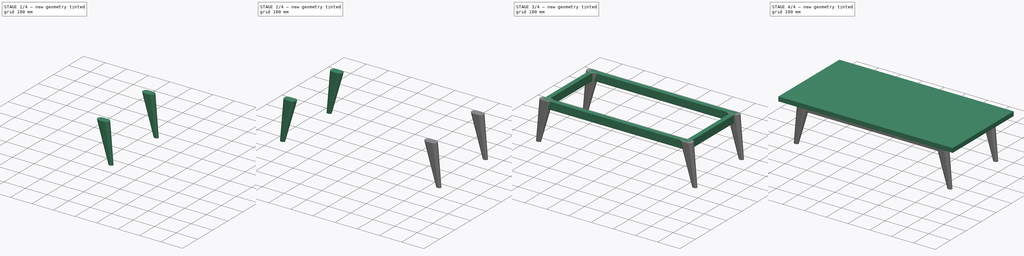
[diagram: build sequence overview — one tinted view per stage of 4, left to right]
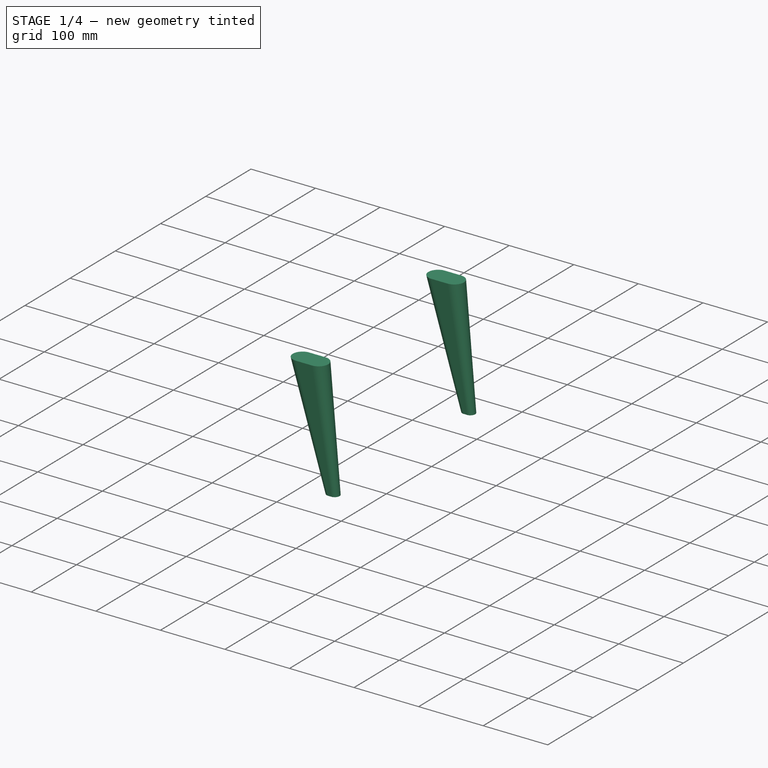
[diagram: stage 1 of 4 — iso view after this stage's code; geometry added in this stage tinted green]
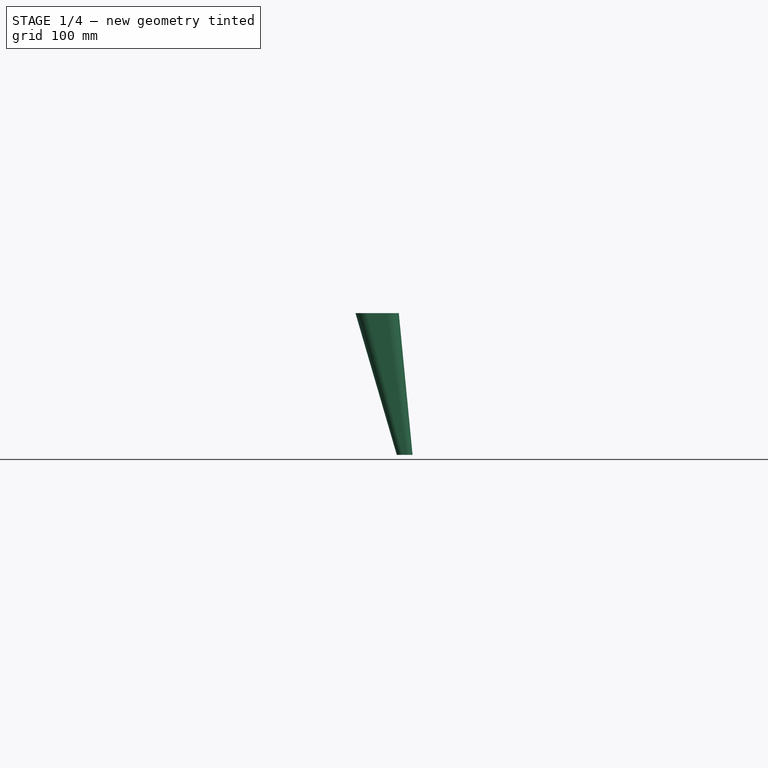
[diagram: stage 1 of 4 — front view after this stage's code; geometry added in this stage tinted green]
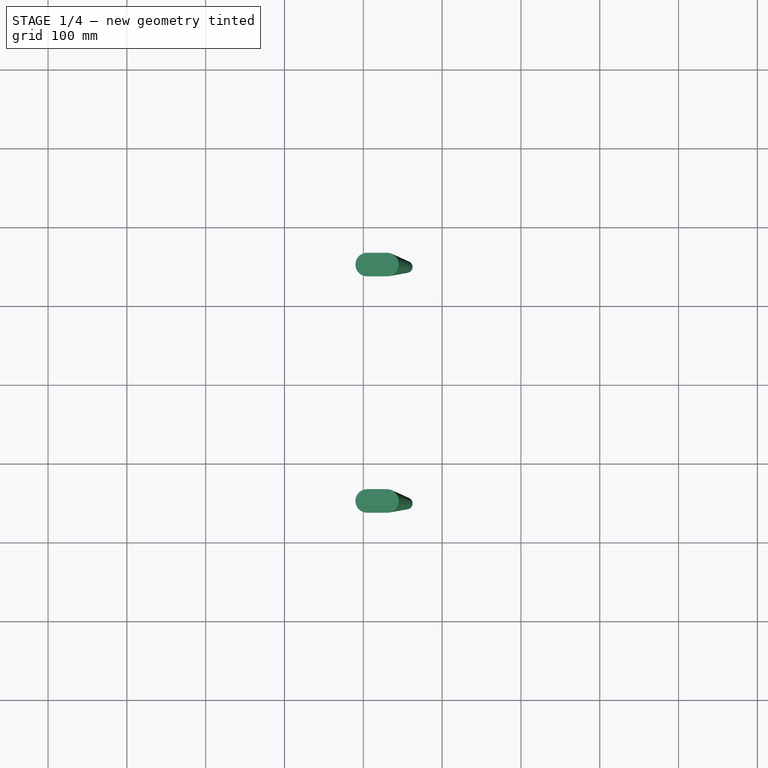
[diagram: stage 1 of 4 — top view after this stage's code; geometry added in this stage tinted green]
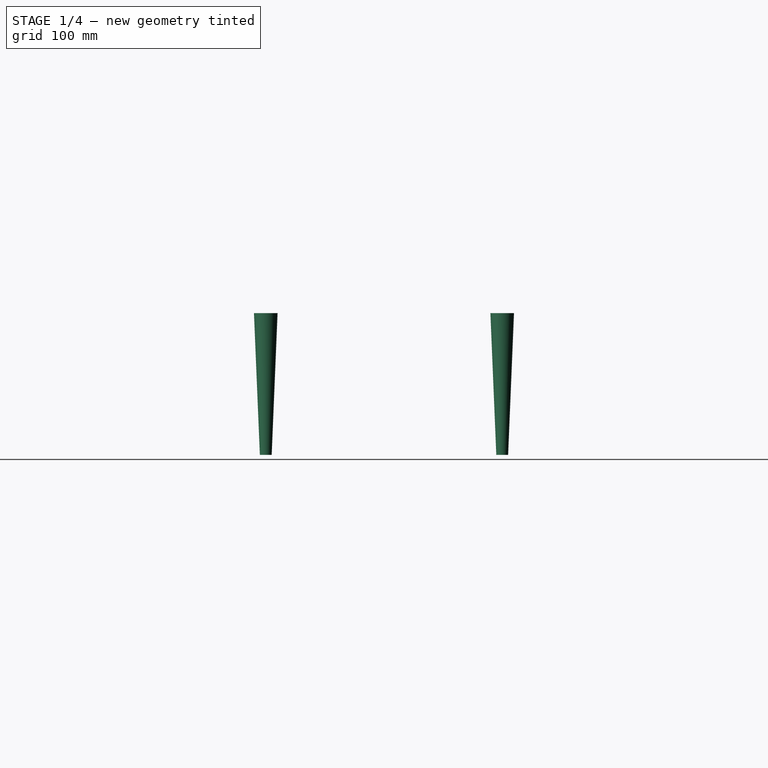
[diagram: stage 1 of 4 — right view after this stage's code; geometry added in this stage tinted green]
FCSTD DOCUMENT  (FreeCAD 1.0R38641 +468 (Git))
Label: Rectangular_center_table_R04
License: All rights reserved
LicenseURL: https://en.wikipedia.org/wiki/All_rights_reserved
objects: Sketcher::SketchObject×12, App::DocumentObjectGroup×11, App::MaterialObjectPython×5, App::FeaturePython×5, Part::Loft×4, Part::Extrusion×3, App::TextDocument×2, Part::Compound×2, Part::Part2DObjectPython×2, Spreadsheet::Sheet×1, App::VarSet×1, App::DocumentObjectGroupPython×1
note: 40 computed .brp shape members not serialized (recipe doc carries the construction recipe); baked Part::Feature solids carry a one-line shape summary decoded from their .brp

FEATURE [Sketcher::SketchObject] Sketch262
  ArcFitTolerance = 0
  AttachmentSupport = -> [Sketch022]
  ExternalGeometry = -> [Sketch022]
  FullyConstrained = true
  MakeInternals = false
  MapMode = 2
  sketch-geometry (4):
    g0: ArcOfCircle CenterX=350 CenterY=-150 CenterZ=0 NormalX=0 NormalY=0 NormalZ=1 AngleXU=0 Radius=7.5 StartAngle=1.5708 EndAngle=4.71239
    g1: ArcOfCircle CenterX=355 CenterY=-150 CenterZ=0 NormalX=0 NormalY=0 NormalZ=1 AngleXU=0 Radius=7.5 StartAngle=4.71239 EndAngle=7.85398
    g2: LineSegment StartX=350 StartY=-157.5 StartZ=0 EndX=355 EndY=-157.5 EndZ=0
    g3: LineSegment StartX=355 StartY=-142.5 StartZ=0 EndX=350 EndY=-142.5 EndZ=0
  constraints (10):
    c: Tangent(g0,g2) = -1.5708
    c: Tangent(g2,g1) = -1.5708
    c: Tangent(g1,g3) = -1.5708
    c: Tangent(g3,g0) = -1.5708
    c: Equal(g0,g1)
    c: Horizontal(g3)
    c: DistanceY(g1,g1) = 15  'Thickness'
    c: DistanceX(g0,g1) = 5  'Distance_between_arcs'
    c: DistanceY(g-3,g0) = 50
    c: DistanceX(g1,g-4) = 45  'Side_retreat'
FEATURE [Sketcher::SketchObject] Sketch263
  ArcFitTolerance = 0
  AttachmentOffset = pos=(0,0,180) rot=(0,0,1;0rad)
  AttachmentSupport = -> [Sketch022]
  ExternalGeometry = -> [Sketch022]
  FullyConstrained = true
  MakeInternals = false
  MapMode = 2
  Placement = pos=(0,0,180) rot=(0,0,1;0rad)
  expr: .AttachmentOffset.Base.z = VarSet.Base_dimensions_B_Height - VarSet.Panel_B_Thickness
  sketch-geometry (4):
    g0: ArcOfCircle CenterX=305 CenterY=-150 CenterZ=0 NormalX=0 NormalY=0 NormalZ=1 AngleXU=0 Radius=15 StartAngle=1.5708 EndAngle=4.71239
    g1: ArcOfCircle CenterX=330 CenterY=-150 CenterZ=0 NormalX=0 NormalY=0 NormalZ=1 AngleXU=0 Radius=15 StartAngle=4.71239 EndAngle=7.85398
    g2: LineSegment StartX=305 StartY=-165 StartZ=0 EndX=330 EndY=-165 EndZ=0
    g3: LineSegment StartX=330 StartY=-135 StartZ=0 EndX=305 EndY=-135 EndZ=0
  constraints (10):
    c: Tangent(g0,g2) = -1.5708
    c: Tangent(g2,g1) = -1.5708
    c: Tangent(g1,g3) = -1.5708
    c: Tangent(g3,g0) = -1.5708
    c: Equal(g0,g1)
    c: Horizontal(g2)
    c: DistanceY(g-3,g0) = 50  'Front_retreat'
    c: DistanceX(g3,g3) = 25  'Distance_between_arcs'
    c: DistanceY(g1,g1) = 30  'Thickness'
    c: DistanceX(g1,g-4) = 70  'Side_retreat'
FEATURE [Part::Loft] Loft002  label="Foot_03_"
  Closed = false
  MaxDegree = 5
  Ruled = true
  Sections = -> [Sketch262,Sketch263]
  Solid = true
FEATURE [Sketcher::SketchObject] Sketch264
  ArcFitTolerance = 0
  AttachmentSupport = -> [Sketch022]
  ExternalGeometry = -> [Sketch022]
  FullyConstrained = true
  MakeInternals = false
  MapMode = 2
  sketch-geometry (4):
    g0: ArcOfCircle CenterX=350 CenterY=150 CenterZ=0 NormalX=0 NormalY=0 NormalZ=1 AngleXU=0 Radius=7.5 StartAngle=1.5708 EndAngle=4.71239
    g1: ArcOfCircle CenterX=355 CenterY=150 CenterZ=0 NormalX=0 NormalY=0 NormalZ=1 AngleXU=0 Radius=7.5 StartAngle=4.71239 EndAngle=7.85398
    g2: LineSegment StartX=350 StartY=142.5 StartZ=0 EndX=355 EndY=142.5 EndZ=0
    g3: LineSegment StartX=355 StartY=157.5 StartZ=0 EndX=350 EndY=157.5 EndZ=0
  constraints (10):
    c: Tangent(g0,g2) = -1.5708
    c: Tangent(g2,g1) = -1.5708
    c: Tangent(g1,g3) = -1.5708
    c: Tangent(g3,g0) = -1.5708
    c: Equal(g0,g1)
    c: Horizontal(g3)
    c: DistanceY(g1,g1) = 15  'Thickness'
    c: DistanceX(g0,g1) = 5  'Distance_between_arcs'
    c: DistanceX(g1,g-4) = 45  'Side_retreat'
    c: DistanceY(g1,g-4) = 50  'Reat_retreat'
FEATURE [Sketcher::SketchObject] Sketch265
  ArcFitTolerance = 0
  AttachmentOffset = pos=(0,0,180) rot=(0,0,1;0rad)
  AttachmentSupport = -> [Sketch022]
  ExternalGeometry = -> [Sketch022]
  FullyConstrained = true
  MakeInternals = false
  MapMode = 2
  Placement = pos=(0,0,180) rot=(0,0,1;0rad)
  expr: .AttachmentOffset.Base.z = VarSet.Base_dimensions_B_Height - VarSet.Panel_B_Thickness
  sketch-geometry (4):
    g0: ArcOfCircle CenterX=305 CenterY=150 CenterZ=0 NormalX=0 NormalY=0 NormalZ=1 AngleXU=0 Radius=15 StartAngle=1.5708 EndAngle=4.71239
    g1: ArcOfCircle CenterX=330 CenterY=150 CenterZ=0 NormalX=0 NormalY=0 NormalZ=1 AngleXU=0 Radius=15 StartAngle=4.71239 EndAngle=7.85398
    g2: LineSegment StartX=305 StartY=135 StartZ=0 EndX=330 EndY=135 EndZ=0
    g3: LineSegment StartX=330 StartY=165 StartZ=0 EndX=305 EndY=165 EndZ=0
  constraints (10):
    c: Tangent(g0,g2) = -1.5708
    c: Tangent(g2,g1) = -1.5708
    c: Tangent(g1,g3) = -1.5708
    c: Tangent(g3,g0) = -1.5708
    c: Equal(g0,g1)
    c: Horizontal(g2)
    c: DistanceX(g3,g3) = 25  'Distance_between_arcs'
    c: DistanceY(g1,g1) = 30  'Thickness'
    c: DistanceX(g1,g-4) = 70  'Side_retreat'
    c: DistanceY(g1,g-4) = 50  'Rear_retreat'
FEATURE [Part::Loft] Loft003  label="Foot_03_001"
  Closed = false
  MaxDegree = 5
  Ruled = true
  Sections = -> [Sketch264,Sketch265]
  Solid = true
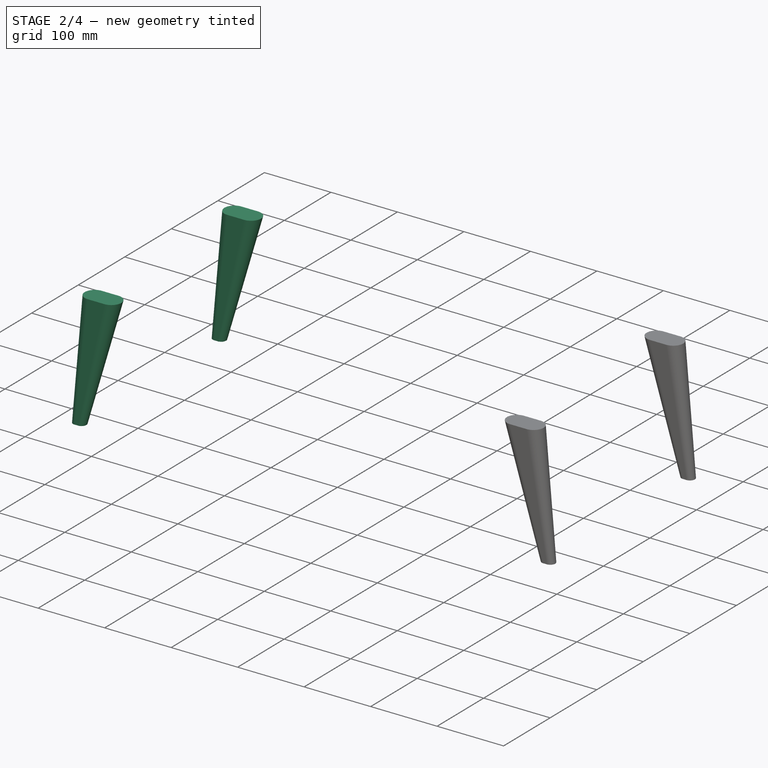
[diagram: stage 2 of 4 — iso view after this stage's code; geometry added in this stage tinted green]
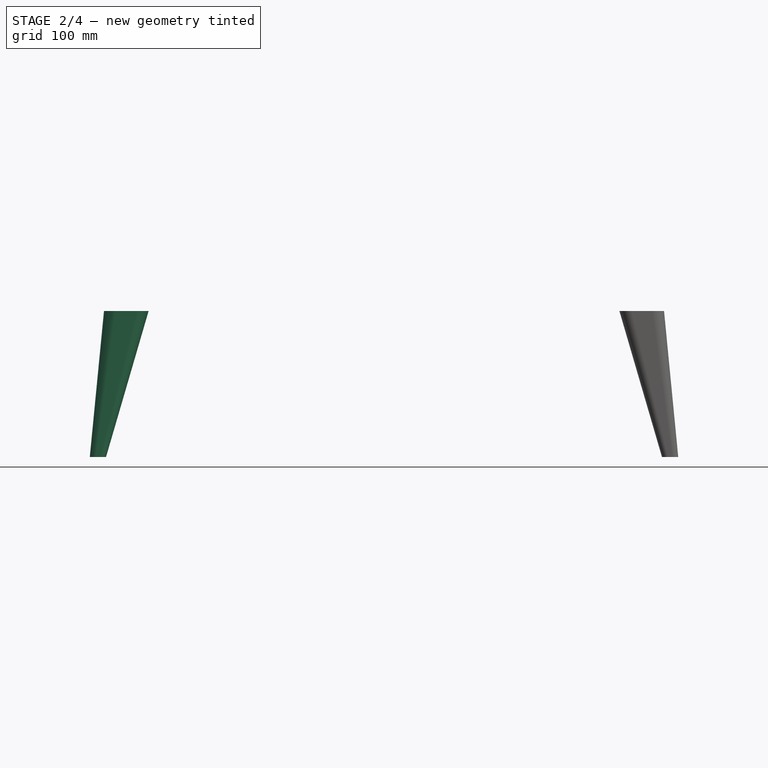
[diagram: stage 2 of 4 — front view after this stage's code; geometry added in this stage tinted green]
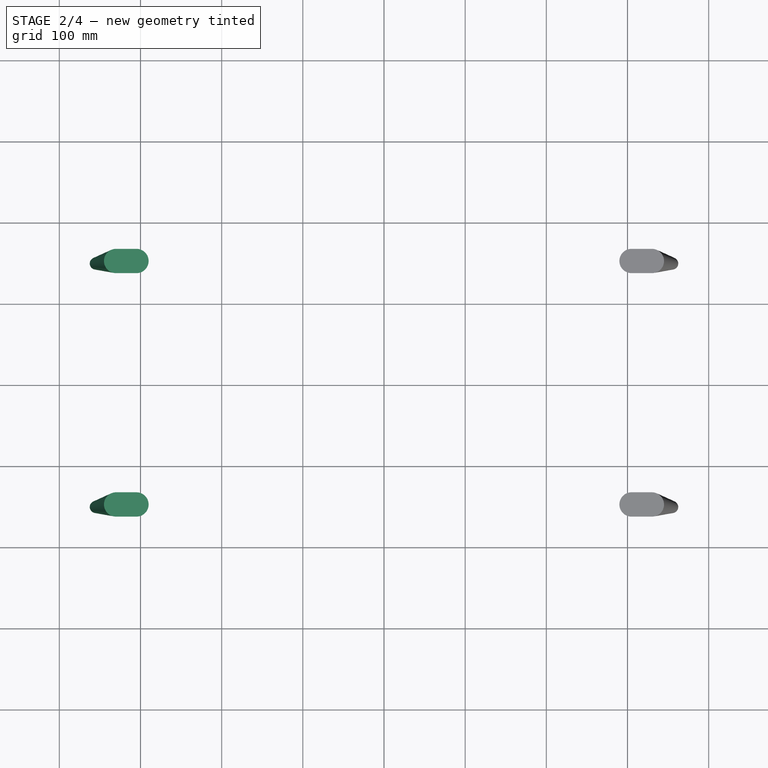
[diagram: stage 2 of 4 — top view after this stage's code; geometry added in this stage tinted green]
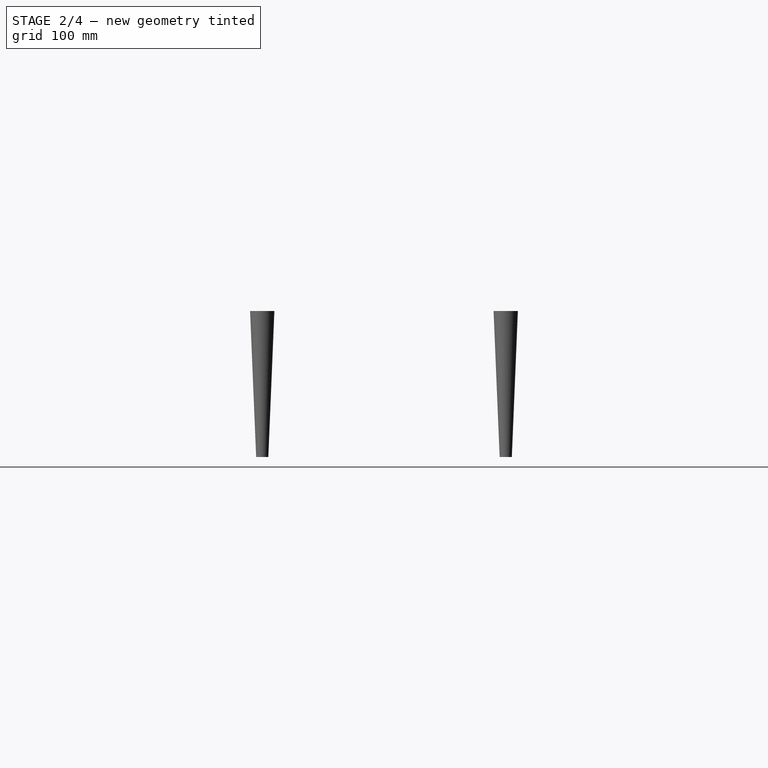
[diagram: stage 2 of 4 — right view after this stage's code; geometry added in this stage tinted green]
FEATURE [Sketcher::SketchObject] Sketch022  label="Table_base_move_rotate_"
  ArcFitTolerance = 0
  FullyConstrained = true
  MakeInternals = false
  expr: .Constraints.Length = VarSet.Base_dimensions_B_Length
  expr: .Constraints.Width = VarSet.Base_dimensions_B_Width
  sketch-geometry (11):
    g0: LineSegment StartX=-400 StartY=200 StartZ=0 EndX=400 EndY=200 EndZ=0
    g1: LineSegment StartX=400 StartY=200 StartZ=0 EndX=400 EndY=-200 EndZ=0
    g2: LineSegment StartX=400 StartY=-200 StartZ=0 EndX=-400 EndY=-200 EndZ=0
    g3: LineSegment StartX=-400 StartY=-200 StartZ=0 EndX=-400 EndY=200 EndZ=0
    g4: LineSegment [constr] StartX=-500 StartY=300 StartZ=0 EndX=500 EndY=300 EndZ=0
    g5: LineSegment [constr] StartX=500 StartY=300 StartZ=0 EndX=500 EndY=-300 EndZ=0
    g6: LineSegment [constr] StartX=500 StartY=-300 StartZ=0 EndX=-500 EndY=-300 EndZ=0
    g7: LineSegment [constr] StartX=-500 StartY=-300 StartZ=0 EndX=-500 EndY=300 EndZ=0
    g8: LineSegment StartX=-500 StartY=0 StartZ=0 EndX=500 EndY=0 EndZ=0
    g9: LineSegment StartX=0 StartY=300 StartZ=0 EndX=0 EndY=-300 EndZ=0
    g10: Circle CenterX=0 CenterY=0 CenterZ=0 NormalX=0 NormalY=0 NormalZ=1 AngleXU=0 Radius=50
  constraints (30):
    c: Coincident(g0,g1)
    c: Coincident(g1,g2)
    c: Coincident(g2,g3)
    c: Coincident(g3,g0)
    c: Horizontal(g2)
    c: Vertical(g1)
    c: DistanceX(g2,g2) = 800  'Length'
    c: DistanceY(g3,g3) = 400  'Width'
    c: Symmetric(g0,g0,g-2)
    c: Symmetric(g0,g2,g-1)
    c: Coincident(g4,g5)
    c: Coincident(g5,g6)
    c: Coincident(g6,g7)
    c: Coincident(g7,g4)
    c: Horizontal(g6)
    c: Vertical(g7)
    c: Symmetric(g4,g5,g-1)
    c: Symmetric(g4,g4,g-2)
    c: DistanceY(g0,g4) = 100
    c: DistanceX(g0,g4) = 100
    c: PointOnObject(g8,g7)
    c: PointOnObject(g8,g5)
    c: Horizontal(g8)
    c: PointOnObject(g9,g4)
    c: PointOnObject(g9,g6)
    c: Vertical(g9)
    c: PointOnObject(g8,g-1)
    c: PointOnObject(g9,g-2)
    c: Coincident(g10,g-1)
    c: Diameter(g10) = 100
FEATURE [Spreadsheet::Sheet] Spreadsheet003  label="Rectangular_center_table_outputs"
  cells = A1='Description:; A2==<<Rectangular center table of %s x %s x %s>> % tuple(VarSet.Base_dimensions_B_Length; VarSet.Base_dimensions_B_Width; VarSet.Base_dimensions_B_Height) + << in length, width and height, compound of panel of %s>> % VarSet.Panel_C_Material.Label + << and feet of %s>> % VarSet.Feet_C_Material.Label + <<.>>; A4='Parts; B4='L; C4='H; D4='W; E4='T; F4='A; G4='Materials; H4='Quantities; A5='01-Top panel; B5==VarSet.Base_dimensions_B_Length; D5==VarSet.Base_dimensions_B_Width; E5==VarSet.Panel_B_Thickness; F5==Extrude039021.Area; G5==VarSet.Panel_C_Material.Label; H5=1; A6='02-Foot frames; B6==(VarSet.Base_dimensions_B_Length - 180 mm) * 2 + (VarSet.Base_dimensions_B_Width - 120 mm) * 2; C6==Sketch259.Constraints.Height; E6==Sketch259.Constraints.Width; G6==VarSet.Foot_frames_C_Material.Label; H6=4; A7='03-Feet; C7==VarSet.Base_dimensions_B_Height - VarSet.Panel_B_Thickness; D7==<<from %s>> % (Sketch257.Constraints.Thickness + 2 * Sketch257.Constraints.Distance_between_arcs) + << to %s>> % (Sketch258.Constraints.Thickness + 2 * Sketch258.Constraints.Distance_between_arcs); E7==<<from %s>> % Sketch257.Constraints.Thickness + << to %s>> % Sketch258.Constraints.Thickness; G7==VarSet.Feet_C_Material.Label; H7=4
FEATURE [Sketcher::SketchObject] Sketch255  label="Sketch032_Bottom_panel"
  ArcFitTolerance = 0
  AttachmentSupport = -> [Sketch022]
  ExternalGeometry = -> [Sketch022]
  FullyConstrained = true
  MakeInternals = false
  MapMode = 2
  sketch-geometry (4):
    g0: LineSegment StartX=-400 StartY=200 StartZ=0 EndX=400 EndY=200 EndZ=0
    g1: LineSegment StartX=400 StartY=200 StartZ=0 EndX=400 EndY=-200 EndZ=0
    g2: LineSegment StartX=400 StartY=-200 StartZ=0 EndX=-400 EndY=-200 EndZ=0
    g3: LineSegment StartX=-400 StartY=-200 StartZ=0 EndX=-400 EndY=200 EndZ=0
  constraints (10):
    c: Coincident(g0,g1)
    c: Coincident(g1,g2)
    c: Coincident(g2,g3)
    c: Coincident(g3,g0)
    c: Horizontal(g0)
    c: Horizontal(g2)
    c: Vertical(g1)
    c: Vertical(g3)
    c: Coincident(g0,g-3)
    c: Coincident(g1,g-4)
FEATURE [Sketcher::SketchObject] Sketch257
  ArcFitTolerance = 0
  AttachmentSupport = -> [Sketch022]
  ExternalGeometry = -> [Sketch022]
  FullyConstrained = true
  MakeInternals = false
  MapMode = 2
  sketch-geometry (4):
    g0: ArcOfCircle CenterX=-355 CenterY=-150 CenterZ=0 NormalX=0 NormalY=0 NormalZ=1 AngleXU=0 Radius=7.5 StartAngle=1.5708 EndAngle=4.71239
    g1: ArcOfCircle CenterX=-350 CenterY=-150 CenterZ=0 NormalX=0 NormalY=0 NormalZ=1 AngleXU=0 Radius=7.5 StartAngle=4.71239 EndAngle=7.85398
    g2: LineSegment StartX=-355 StartY=-157.5 StartZ=0 EndX=-350 EndY=-157.5 EndZ=0
    g3: LineSegment StartX=-350 StartY=-142.5 StartZ=0 EndX=-355 EndY=-142.5 EndZ=0
  constraints (10):
    c: Tangent(g0,g2) = -1.5708
    c: Tangent(g2,g1) = -1.5708
    c: Tangent(g1,g3) = -1.5708
    c: Tangent(g3,g0) = -1.5708
    c: Equal(g0,g1)
    c: Horizontal(g3)
    c: DistanceY(g1,g1) = 15  'Thickness'
    c: DistanceX(g0,g1) = 5  'Distance_between_arcs'
    c: DistanceY(g-3,g0) = 50
    c: DistanceX(g-3,g0) = 45
FEATURE [Sketcher::SketchObject] Sketch258
  ArcFitTolerance = 0
  AttachmentOffset = pos=(-1,0,180) rot=(0,0,1;0rad)
  AttachmentSupport = -> [Sketch022]
  ExternalGeometry = -> [Sketch022]
  FullyConstrained = true
  MakeInternals = false
  MapMode = 2
  Placement = pos=(-1,0,180) rot=(0,0,1;0rad)
  expr: .AttachmentOffset.Base.z = VarSet.Base_dimensions_B_Height - VarSet.Panel_B_Thickness
  expr: .Constraints.Distance_between_arcs = 25 mm
  expr: .Constraints.Front_retreat = 50 mm
  expr: .Constraints.Side_retreat = 70 mm
  sketch-geometry (4):
    g0: ArcOfCircle CenterX=-329 CenterY=-150 CenterZ=0 NormalX=0 NormalY=0 NormalZ=1 AngleXU=0 Radius=15 StartAngle=1.5708 EndAngle=4.71239
    g1: ArcOfCircle CenterX=-304 CenterY=-150 CenterZ=0 NormalX=0 NormalY=0 NormalZ=1 AngleXU=0 Radius=15 StartAngle=4.71239 EndAngle=7.85398
    g2: LineSegment StartX=-329 StartY=-165 StartZ=0 EndX=-304 EndY=-165 EndZ=0
    g3: LineSegment StartX=-304 StartY=-135 StartZ=0 EndX=-329 EndY=-135 EndZ=0
  constraints (10):
    c: Tangent(g0,g2) = -1.5708
    c: Tangent(g2,g1) = -1.5708
    c: Tangent(g1,g3) = -1.5708
    c: Tangent(g3,g0) = -1.5708
    c: Equal(g0,g1)
    c: Horizontal(g2)
    c: DistanceX(g-3,g0) = 70  'Side_retreat'
    c: DistanceY(g-3,g0) = 50  'Front_retreat'
    c: DistanceX(g3,g3) = 25  'Distance_between_arcs'
    c: DistanceY(g1,g1) = 30  'Thickness'
FEATURE [Part::Loft] Loft  label="Foot_01_"
  Closed = false
  MaxDegree = 5
  Ruled = true
  Sections = -> [Sketch257,Sketch258]
  Solid = true
FEATURE [Sketcher::SketchObject] Sketch260
  ArcFitTolerance = 0
  AttachmentSupport = -> [Sketch022]
  ExternalGeometry = -> [Sketch022]
  FullyConstrained = true
  MakeInternals = false
  MapMode = 2
  sketch-geometry (4):
    g0: ArcOfCircle CenterX=-355 CenterY=150 CenterZ=0 NormalX=0 NormalY=0 NormalZ=1 AngleXU=0 Radius=7.5 StartAngle=1.5708 EndAngle=4.71239
    g1: ArcOfCircle CenterX=-350 CenterY=150 CenterZ=0 NormalX=0 NormalY=0 NormalZ=1 AngleXU=0 Radius=7.5 StartAngle=4.71239 EndAngle=7.85398
    g2: LineSegment StartX=-355 StartY=142.5 StartZ=0 EndX=-350 EndY=142.5 EndZ=0
    g3: LineSegment StartX=-350 StartY=157.5 StartZ=0 EndX=-355 EndY=157.5 EndZ=0
  constraints (10):
    c: Tangent(g0,g2) = -1.5708
    c: Tangent(g2,g1) = -1.5708
    c: Tangent(g1,g3) = -1.5708
    c: Tangent(g3,g0) = -1.5708
    c: Equal(g0,g1)
    c: Horizontal(g3)
    c: DistanceY(g1,g1) = 15  'Thickness'
    c: DistanceX(g0,g1) = 5  'Distance_between_arcs'
    c: DistanceX(g-3,g0) = 45
    c: DistanceY(g0,g-3) = 50
FEATURE [Sketcher::SketchObject] Sketch261
  ArcFitTolerance = 0
  AttachmentOffset = pos=(0,0,180) rot=(0,0,1;0rad)
  AttachmentSupport = -> [Sketch022]
  ExternalGeometry = -> [Sketch022]
  FullyConstrained = true
  MakeInternals = false
  MapMode = 2
  Placement = pos=(0,0,180) rot=(0,0,1;0rad)
  expr: .AttachmentOffset.Base.z = VarSet.Base_dimensions_B_Height - VarSet.Panel_B_Thickness
  sketch-geometry (4):
    g0: ArcOfCircle CenterX=-330 CenterY=150 CenterZ=0 NormalX=0 NormalY=0 NormalZ=1 AngleXU=0 Radius=15 StartAngle=1.5708 EndAngle=4.71239
    g1: ArcOfCircle CenterX=-305 CenterY=150 CenterZ=0 NormalX=0 NormalY=0 NormalZ=1 AngleXU=0 Radius=15 StartAngle=4.71239 EndAngle=7.85398
    g2: LineSegment StartX=-330 StartY=135 StartZ=0 EndX=-305 EndY=135 EndZ=0
    g3: LineSegment StartX=-305 StartY=165 StartZ=0 EndX=-330 EndY=165 EndZ=0
  constraints (10):
    c: Tangent(g0,g2) = -1.5708
    c: Tangent(g2,g1) = -1.5708
    c: Tangent(g1,g3) = -1.5708
    c: Tangent(g3,g0) = -1.5708
    c: Equal(g0,g1)
    c: Horizontal(g2)
    c: DistanceX(g-3,g0) = 70  'Side_retreat'
    c: DistanceX(g3,g3) = 25  'Distance_between_arcs'
    c: DistanceY(g1,g1) = 30  'Thickness'
    c: DistanceY(g0,g-3) = 50  'Rear_retreat'
FEATURE [Part::Loft] Loft001  label="Foot_02_"
  Closed = false
  MaxDegree = 5
  Ruled = true
  Sections = -> [Sketch260,Sketch261]
  Solid = true
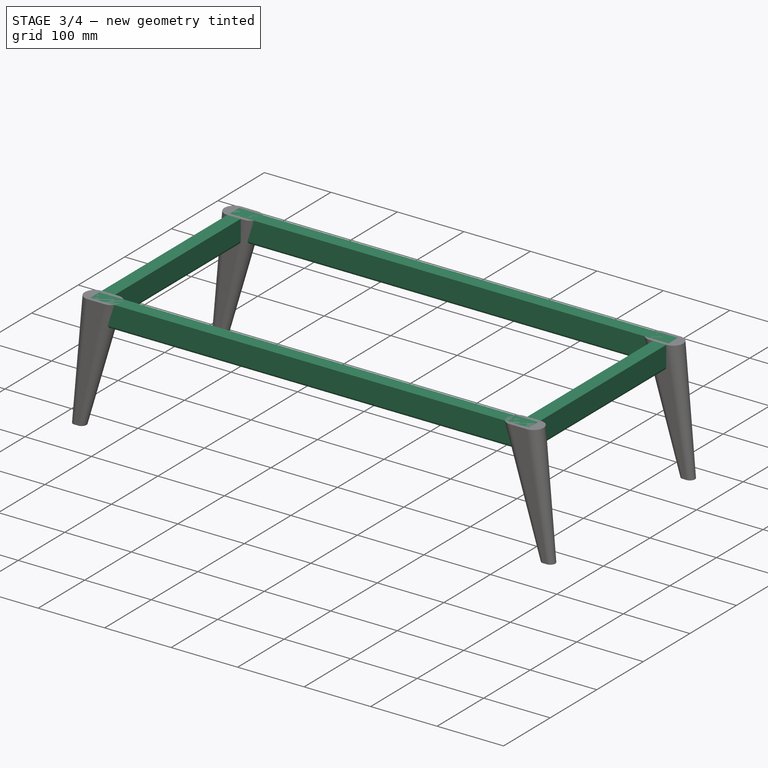
[diagram: stage 3 of 4 — iso view after this stage's code; geometry added in this stage tinted green]
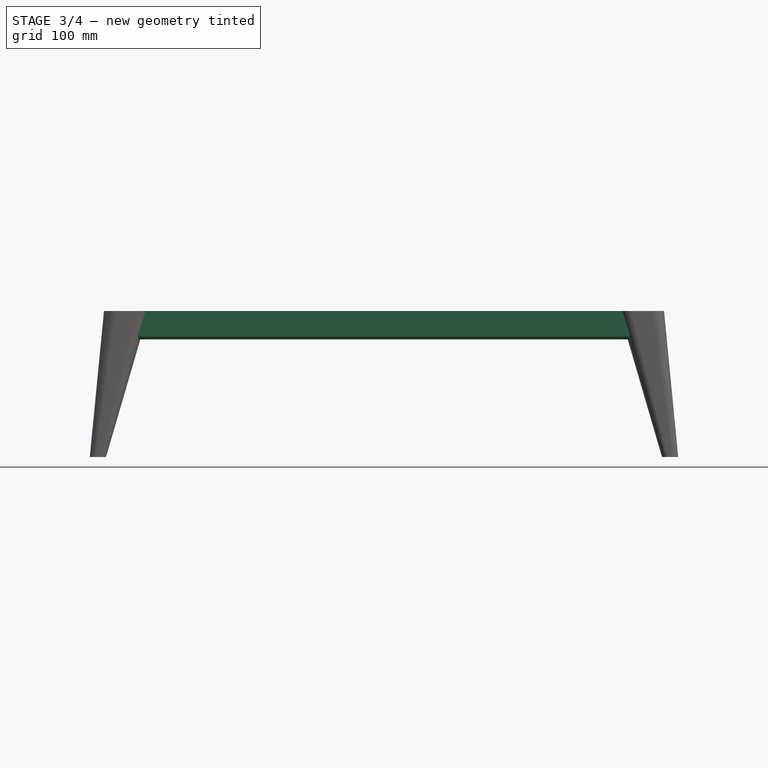
[diagram: stage 3 of 4 — front view after this stage's code; geometry added in this stage tinted green]
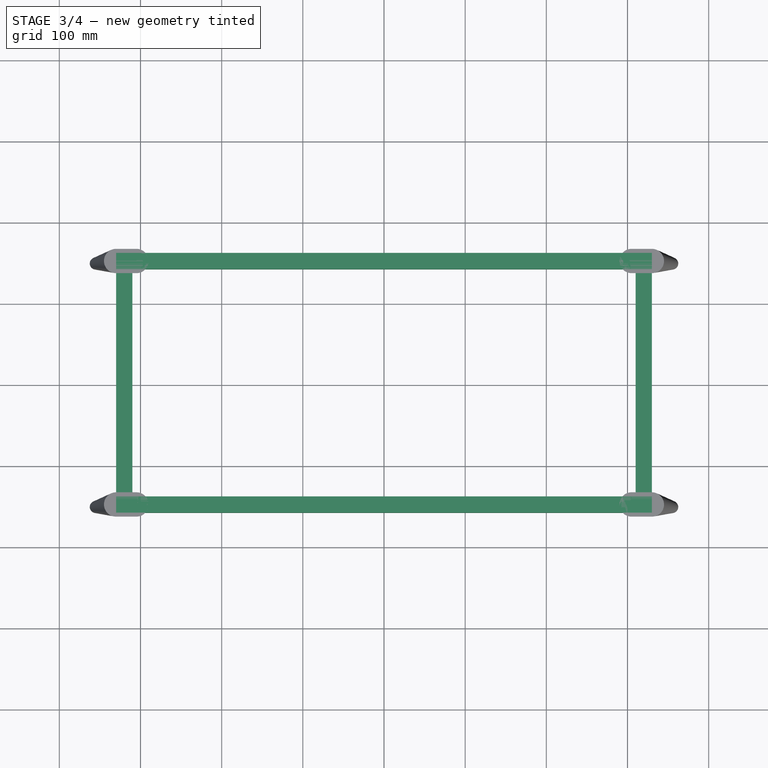
[diagram: stage 3 of 4 — top view after this stage's code; geometry added in this stage tinted green]
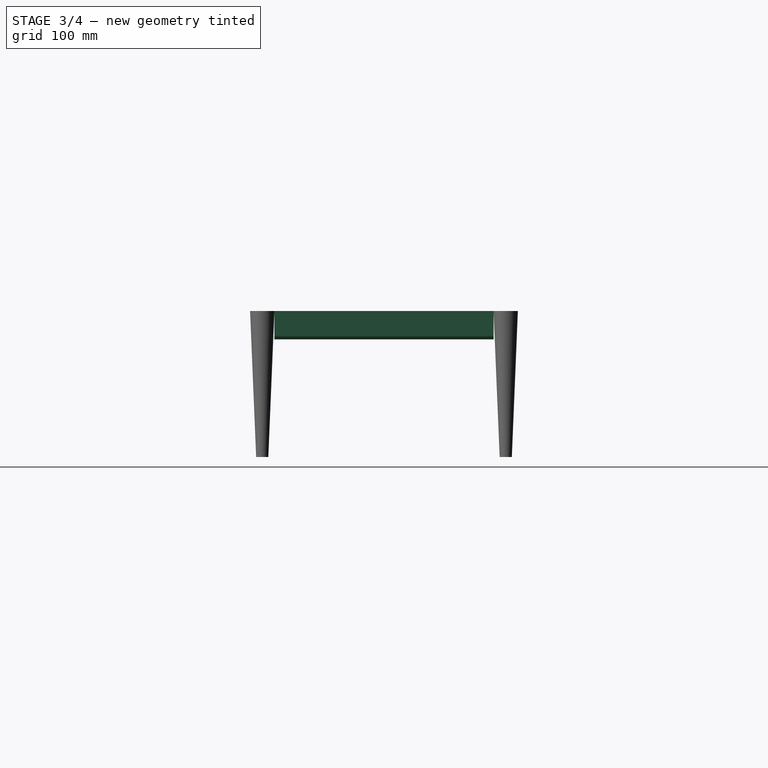
[diagram: stage 3 of 4 — right view after this stage's code; geometry added in this stage tinted green]
FEATURE [Sketcher::SketchObject] Sketch259
  ArcFitTolerance = 0
  AttachmentOffset = pos=(0,0,-330) rot=(0,0,1;0rad)
  AttachmentSupport = -> [Sketch022]
  ExternalGeometry = -> [Sketch022]
  FullyConstrained = false
  MakeInternals = false
  MapMode = 4
  Placement = pos=(-330,0,0) rot=(0.57735,0.57735,0.57735;2.0944rad)
  expr: .AttachmentOffset.Base.x = 0
  expr: .AttachmentOffset.Base.y = 0
  expr: .AttachmentOffset.Base.z = -VarSet.Base_dimensions_B_Length / 2 + 70 mm
  expr: .Constraints.Height_from_floor = VarSet.Base_dimensions_B_Height - VarSet.Panel_B_Thickness
  sketch-geometry (22):
    g0: LineSegment StartX=-160 StartY=180 StartZ=0 EndX=-140 EndY=180 EndZ=0
    g1: LineSegment StartX=-140 StartY=180 StartZ=0 EndX=-140 EndY=150 EndZ=0
    g2: LineSegment StartX=-145 StartY=145 StartZ=0 EndX=-155 EndY=145 EndZ=0
    g3: LineSegment StartX=-160 StartY=150 StartZ=0 EndX=-160 EndY=180 EndZ=0
    g4: ArcOfCircle CenterX=-155 CenterY=150 CenterZ=0 NormalX=0 NormalY=0 NormalZ=1 AngleXU=0 Radius=5 StartAngle=3.14159 EndAngle=4.71239
    g5: ArcOfCircle CenterX=-145 CenterY=150 CenterZ=0 NormalX=0 NormalY=0 NormalZ=1 AngleXU=0 Radius=5 StartAngle=4.71239 EndAngle=6.28319
    g6: LineSegment StartX=140 StartY=180 StartZ=0 EndX=160 EndY=180 EndZ=0
    g7: LineSegment StartX=160 StartY=180 StartZ=0 EndX=160 EndY=150 EndZ=0
    g8: LineSegment StartX=155 StartY=145 StartZ=0 EndX=145 EndY=145 EndZ=0
    g9: LineSegment StartX=140 StartY=150 StartZ=0 EndX=140 EndY=180 EndZ=0
    g10: ArcOfCircle CenterX=145 CenterY=150 CenterZ=0 NormalX=0 NormalY=0 NormalZ=1 AngleXU=0 Radius=5 StartAngle=3.14159 EndAngle=4.71239
    g11: ArcOfCircle CenterX=155 CenterY=150 CenterZ=0 NormalX=0 NormalY=0 NormalZ=1 AngleXU=0 Radius=5 StartAngle=4.71239 EndAngle=6.28319
    g12: LineSegment [constr] StartX=145 StartY=180 StartZ=0 EndX=155 EndY=180 EndZ=0
    g13: LineSegment [constr] StartX=155 StartY=180 StartZ=0 EndX=155 EndY=150 EndZ=0
    g14: LineSegment [constr] StartX=155 StartY=150 StartZ=0 EndX=145 EndY=150 EndZ=0
    g15: LineSegment [constr] StartX=145 StartY=150 StartZ=0 EndX=145 EndY=180 EndZ=0
    g16: LineSegment [constr] StartX=150 StartY=282.123 StartZ=0 EndX=150 EndY=210.043 EndZ=0
    g17: LineSegment [constr] StartX=-150 StartY=281.787 StartZ=0 EndX=-150 EndY=235.11 EndZ=0
    g18: LineSegment [constr] StartX=-155 StartY=180 StartZ=0 EndX=-145 EndY=180 EndZ=0
    g19: LineSegment [constr] StartX=-145 StartY=180 StartZ=0 EndX=-145 EndY=150 EndZ=0
    g20: LineSegment [constr] StartX=-145 StartY=150 StartZ=0 EndX=-155 EndY=150 EndZ=0
    g21: LineSegment [constr] StartX=-155 StartY=150 StartZ=0 EndX=-155 EndY=180 EndZ=0
  constraints (53):
    c: Horizontal(g0)
    c: Coincident(g0,g1)
    c: Vertical(g1)
    c: Coincident(g3,g0)
    c: Vertical(g3)
    c: DistanceX(g0,g0) = 20  'Width'
    c: Horizontal(g2)
    c: DistanceX(g-3,g0) = 40  'Front_retreat'
    c: Tangent(g3,g4) = 1.5708
    c: Tangent(g2,g4) = 1.5708
    c: Tangent(g2,g5) = 1.5708
    c: Tangent(g1,g5) = 1.5708
    c: Equal(g4,g5)
    c: DistanceY(g2,g0) = 35  'Height'
    c: DistanceY(g0) = 180  'Height_from_floor'
    c: Coincident(g6,g7)
    c: Coincident(g9,g6)
    c: Horizontal(g6)
    c: Horizontal(g8)
    c: Vertical(g7)
    c: Vertical(g9)
    c: Tangent(g9,g10) = 1.5708
    c: Tangent(g8,g10) = 1.5708
    c: Tangent(g8,g11) = 1.5708
    c: Tangent(g7,g11) = 1.5708
    c: Coincident(g12,g13)
    c: Coincident(g13,g14)
    c: Coincident(g14,g15)
    c: Coincident(g15,g12)
    c: Horizontal(g14)
    c: Vertical(g13)
    c: PointOnObject(g12,g6)
    c: Coincident(g13,g11)
    c: Coincident(g14,g10)
    c: Symmetric(g12,g12,g16)
    c: Symmetric(g6,g6,g16)
    c: DistanceX(g14,g14) = 10
    c: DistanceX(g6,g6) = 20
    c: DistanceY(g8,g6) = 35
    c: Horizontal(g6,g0)
    c: DistanceX(g6,g-3) = 40
    c: Symmetric(g0,g0,g17)
    c: Coincident(g18,g19)
    c: Coincident(g19,g20)
    c: Coincident(g20,g21)
    c: Coincident(g21,g18)
    c: Horizontal(g18)
    c: Vertical(g19)
    c: Vertical(g21)
    c: PointOnObject(g18,g0)
    c: Coincident(g19,g5)
    c: Coincident(g4,g20)
    c: DistanceX(g20,g20) = 10
FEATURE [Part::Extrusion] Extrude084143354  label="Frame_"
  Base = -> Sketch259
  Dir = (1,0,0)
  DirMode = 2
  FaceMakerClass = Part::FaceMakerBullseye
  FaceMakerMode = 3
  LengthFwd = 660
  LengthRev = 0
  Solid = true
  Symmetric = false
  expr: LengthFwd = VarSet.Base_dimensions_B_Length - 140 mm
FEATURE [Sketcher::SketchObject] Sketch266
  ArcFitTolerance = 0
  AttachmentOffset = pos=(0,0,-135) rot=(0,0,1;0rad)
  AttachmentSupport = -> [Sketch022]
  ExternalGeometry = -> [Sketch022]
  FullyConstrained = false
  MakeInternals = false
  MapMode = 3
  Placement = pos=(0,135,-3e-14) rot=(1,0,0;1.5708rad)
  expr: .AttachmentOffset.Base.x = 0
  expr: .AttachmentOffset.Base.y = 0
  expr: .AttachmentOffset.Base.z = -VarSet.Base_dimensions_B_Width / 2 + 65 mm
  expr: .Constraints.Height = VarSet.Base_dimensions_B_Height - VarSet.Panel_B_Thickness
  sketch-geometry (22):
    g0: LineSegment StartX=310 StartY=180 StartZ=0 EndX=330 EndY=180 EndZ=0
    g1: LineSegment StartX=330 StartY=180 StartZ=0 EndX=330 EndY=150 EndZ=0
    g2: LineSegment StartX=325 StartY=145 StartZ=0 EndX=315 EndY=145 EndZ=0
    g3: LineSegment StartX=310 StartY=150 StartZ=0 EndX=310 EndY=180 EndZ=0
    g4: ArcOfCircle CenterX=315 CenterY=150 CenterZ=0 NormalX=0 NormalY=0 NormalZ=1 AngleXU=0 Radius=5 StartAngle=3.14159 EndAngle=4.71239
    g5: ArcOfCircle CenterX=325 CenterY=150 CenterZ=0 NormalX=0 NormalY=0 NormalZ=1 AngleXU=0 Radius=5 StartAngle=4.71239 EndAngle=6.28319
    g6: LineSegment [constr] StartX=320 StartY=225.144 StartZ=0 EndX=320 EndY=172.403 EndZ=0
    g7: LineSegment [constr] StartX=315 StartY=180 StartZ=0 EndX=325 EndY=180 EndZ=0
    g8: LineSegment [constr] StartX=325 StartY=180 StartZ=0 EndX=325 EndY=150 EndZ=0
    g9: LineSegment [constr] StartX=325 StartY=150 StartZ=0 EndX=315 EndY=150 EndZ=0
    g10: LineSegment [constr] StartX=315 StartY=150 StartZ=0 EndX=315 EndY=180 EndZ=0
    g11: LineSegment StartX=-330 StartY=180 StartZ=0 EndX=-310 EndY=180 EndZ=0
    g12: LineSegment StartX=-310 StartY=180 StartZ=0 EndX=-310 EndY=150 EndZ=0
    g13: LineSegment StartX=-315 StartY=145 StartZ=0 EndX=-325 EndY=145 EndZ=0
    g14: LineSegment StartX=-330 StartY=150 StartZ=0 EndX=-330 EndY=180 EndZ=0
    g15: ArcOfCircle CenterX=-325 CenterY=150 CenterZ=0 NormalX=0 NormalY=0 NormalZ=1 AngleXU=0 Radius=5 StartAngle=3.14159 EndAngle=4.71239
    g16: ArcOfCircle CenterX=-315 CenterY=150 CenterZ=0 NormalX=0 NormalY=0 NormalZ=1 AngleXU=0 Radius=5 StartAngle=4.71239 EndAngle=6.28319
    g17: LineSegment [constr] StartX=-325 StartY=180 StartZ=0 EndX=-315 EndY=180 EndZ=0
    g18: LineSegment [constr] StartX=-315 StartY=180 StartZ=0 EndX=-315 EndY=150 EndZ=0
    g19: LineSegment [constr] StartX=-315 StartY=150 StartZ=0 EndX=-325 EndY=150 EndZ=0
    g20: LineSegment [constr] StartX=-325 StartY=150 StartZ=0 EndX=-325 EndY=180 EndZ=0
    g21: LineSegment [constr] StartX=-320 StartY=220.033 StartZ=0 EndX=-320 EndY=161.545 EndZ=0
  constraints (52):
    c: Horizontal(g0)
    c: Coincident(g0,g1)
    c: Vertical(g1)
    c: Coincident(g3,g0)
    c: Vertical(g3)
    c: Tangent(g3,g4) = 1.5708
    c: Tangent(g2,g4) = 1.5708
    c: Tangent(g2,g5) = 1.5708
    c: Tangent(g1,g5) = 1.5708
    c: DistanceY(g0) = 180  'Height'
    c: DistanceX(g0,g-3) = 70  'Retreat_2'
    c: Symmetric(g0,g0,g6)
    c: Coincident(g7,g8)
    c: Coincident(g8,g9)
    c: Coincident(g9,g10)
    c: Coincident(g10,g7)
    c: Horizontal(g9)
    c: Vertical(g8)
    c: Vertical(g10)
    c: Symmetric(g7,g7,g6)
    c: Horizontal(g0,g7)
    c: Coincident(g9,g4)
    c: Coincident(g8,g5)
    c: DistanceX(g3,g1) = 20
    c: DistanceX(g9,g9) = 10
    c: DistanceY(g2,g0) = 35
    c: Coincident(g11,g12)
    c: Coincident(g14,g11)
    c: Horizontal(g11)
    c: Horizontal(g13)
    c: Vertical(g12)
    c: Vertical(g14)
    c: Tangent(g14,g15) = 1.5708
    c: Tangent(g13,g15) = 1.5708
    c: Tangent(g13,g16) = 1.5708
    c: Tangent(g12,g16) = 1.5708
    c: Coincident(g17,g18)
    c: Coincident(g18,g19)
    c: Coincident(g19,g20)
    c: Coincident(g20,g17)
    c: Horizontal(g19)
    c: Vertical(g18)
    c: PointOnObject(g17,g11)
    c: Coincident(g18,g16)
    c: Coincident(g15,g19)
    c: Symmetric(g17,g17,g21)
    c: Symmetric(g11,g11,g21)
    c: Equal(g11,g0)
    c: Equal(g19,g9)
    c: Horizontal(g11,g0)
    c: Horizontal(g13,g2)
    c: DistanceX(g-3,g11) = 70  'Retreat_1'
FEATURE [Part::Extrusion] Extrude084143355  label="Frame_02_"
  Base = -> Sketch266
  Dir = (0,-1,2e-16)
  DirMode = 2
  FaceMakerClass = Part::FaceMakerBullseye
  FaceMakerMode = 3
  LengthFwd = 270
  LengthRev = 0
  Solid = true
  Symmetric = false
  expr: LengthFwd = VarSet.Base_dimensions_B_Width - 130 mm
FEATURE [Part::Compound] Compound001  label="03-Feet_001"
  Links = -> [Loft,Loft001,Loft002,Loft003]
  Material = -> Material053
  expr: Material = VarSet.Feet_C_Material
  expr: Visibility = VarSet.Visualization_A_Visualization
FEATURE [App::DocumentObjectGroup] Group248  label="03-Component_parts_"
  Group = -> [Extrude039021,Compound,Compound001]
FEATURE [App::FeaturePython] Section  label="Section_Plan_01"  # WARN: FeaturePython — macro-defined, semantics opaque (R4)
  AttacherType = Attacher::AttachEngine3D
  AttachmentOffset = pos=(0,0,500) rot=(0,0,1;0rad)
  AttachmentSupport = -> [Sketch022]
  Clip = false
  Depth = 0
  MapMode = 2
  Objects = -> [Group248]
  OnlySolids = true
  Placement = pos=(0,0,500) rot=(0,0,1;0rad)
  UseMaterialColorForFill = false
  expr: .AttachmentOffset.Base.z = VarSet.Base_dimensions_B_Height + 300 mm
FEATURE [App::FeaturePython] Section002  label="Section002_Lateral_01"  # WARN: FeaturePython — macro-defined, semantics opaque (R4)
  AttacherType = Attacher::AttachEngine3D
  AttachmentOffset = pos=(0,600,700) rot=(0,0,1;0rad)
  AttachmentSupport = -> [Sketch022]
  Clip = false
  Depth = 0
  MapMode = 4
  Objects = -> [Group248]
  OnlySolids = true
  Placement = pos=(700,0,600) rot=(0.57735,0.57735,0.57735;2.0944rad)
  UseMaterialColorForFill = false
  expr: .AttachmentOffset.Base.z = VarSet.Base_dimensions_B_Length / 2 + 300 mm
FEATURE [App::FeaturePython] Section003  label="Section003_Transversal"  # WARN: FeaturePython — macro-defined, semantics opaque (R4)
  AttacherType = Attacher::AttachEngine3D
  AttachmentOffset = pos=(0,600,0) rot=(0,0,1;0rad)
  AttachmentSupport = -> [Sketch022]
  Clip = false
  Depth = 0
  MapMode = 4
  Objects = -> [Group248]
  OnlySolids = true
  Placement = pos=(0,0,600) rot=(0.57735,0.57735,0.57735;2.0944rad)
  UseMaterialColorForFill = false
FEATURE [App::FeaturePython] Section004  label="Section004_Lateral_02"  # WARN: FeaturePython — macro-defined, semantics opaque (R4)
  AttacherType = Attacher::AttachEngine3D
  AttachmentOffset = pos=(0,600,700) rot=(0,0,1;0rad)
  AttachmentSupport = -> [Sketch022]
  Clip = false
  Depth = 0
  MapMode = 4
  Objects = -> [Group248]
  OnlySolids = true
  Placement = pos=(-700,0,600) rot=(0.57735,-0.57735,-0.57735;2.0944rad)
  UseMaterialColorForFill = false
  expr: .AttachmentOffset.Base.z = VarSet.Base_dimensions_B_Length / 2 + 300 mm
FEATURE [App::FeaturePython] Section005  label="Section005_Frontal_"  # WARN: FeaturePython — macro-defined, semantics opaque (R4)
  AttacherType = Attacher::AttachEngine3D
  AttachmentOffset = pos=(0,600,500) rot=(0,0,1;0rad)
  AttachmentSupport = -> [Sketch022]
  Clip = false
  Depth = 0
  MapMode = 3
  Objects = -> [Group248]
  OnlySolids = true
  Placement = pos=(0,-500,600) rot=(1,0,0;1.5708rad)
  UseMaterialColorForFill = false
  expr: .AttachmentOffset.Base.z = VarSet.Base_dimensions_B_Width / 2 + 300 mm
FEATURE [App::VarSet] VarSet  label="01-Prop_Rectangular_center_table_configurations_#_"
  A_General_label_A_Component_label = Rectangular center table
  Base_dimensions_B_Height = 200
  Base_dimensions_B_Length = 800
  Base_dimensions_B_Width = 400
  Feet_C_Material = -> Material053
  Foot_frames_C_Material = -> Material053
  Panel_B_Thickness = 20
  Panel_C_Material = -> Material053
  Visualization_A_Visualization = true
FEATURE [Part::Part2DObjectPython] Shape2DView  label="Plan_rectangular_table_#_"  # Draft 2D object (typed FeaturePython)
  AutoUpdate = true
  Base = -> Section
  Clip = false
  FuseArch = false
  HiddenLines = false
  InPlace = true
  OnlySolids = false
  Projection = (0.385773,-0.854996,0.346644)
  ProjectionMode = 0
  SegmentLength = 0.05
  Tessellation = false
  VisibleOnly = false
FEATURE [App::DocumentObjectGroup] Group  label="06-Drawings_2D_"
  Group = -> [Shape2DView]
FEATURE [App::MaterialObjectPython] Material055  label="white Formica generic"  # material (typed FeaturePython)
  Description = A standard ceramic
  Material = AuthorAndLicense=(c) 2015 Bernd Hahnebach (CC-BY 3.0); CardName=Wood-Generic; Color=(0.8, 0.8, 0.8, 1.0); Density=700 kg/m^3; Description=A standard ceramic; DiffuseColor=(1.0, 1.0, 1.0); Father=Aggregate; Name=white Formica generic; PoissonRatio=0.05; ProductURL=https://en.wikipedia.org/wiki/Wood; SectionColor=(0.8, 0.8, 0.8, 1.0); Transparency=0; ViewColor=(0.8, 0.8, 0.8, 1.0); YoungsModulus=12000 MPa
  ProductURL = https://en.wikipedia.org/wiki/Wood
  Transparency = 0
FEATURE [App::DocumentObjectGroup] Group309  label="Wood_"
  Group = -> [Material053,Material055]
FEATURE [App::DocumentObjectGroupPython] MaterialContainer001  label="02-Materials"  # scripted group (container) (typed FeaturePython)
  Group = -> [Group311,Group310,Group309]
FEATURE [App::DocumentObjectGroup] Group251  label="07-Materials_"
  Group = -> [MaterialContainer001]
FEATURE [Part::Part2DObjectPython] Shape2DView001  label="Plan_Rectangular center table"  # Draft 2D object (typed FeaturePython)
  AutoUpdate = true
  Base = -> Section
  Clip = false
  FuseArch = false
  HiddenLines = false
  InPlace = true
  OnlySolids = false
  Projection = (0.382194,-0.917922,0.106522)
  ProjectionMode = 0
  SegmentLength = 0.05
  Tessellation = false
  VisibleOnly = false
  expr: Label = <<Plan_>> + VarSet.A_General_label_A_Component_label
FEATURE [App::DocumentObjectGroup] Group002  label="08-Sections_plan_#_"
  Group = -> [Section,Section002,Section003,Section004,Section005,Shape2DView001]
FEATURE [App::DocumentObjectGroup] Group286  label="Rectangular_center_table_#_"
  Group = -> [VarSet,Group292,Group248,Group249,Group250,Group,Group251,Group002]
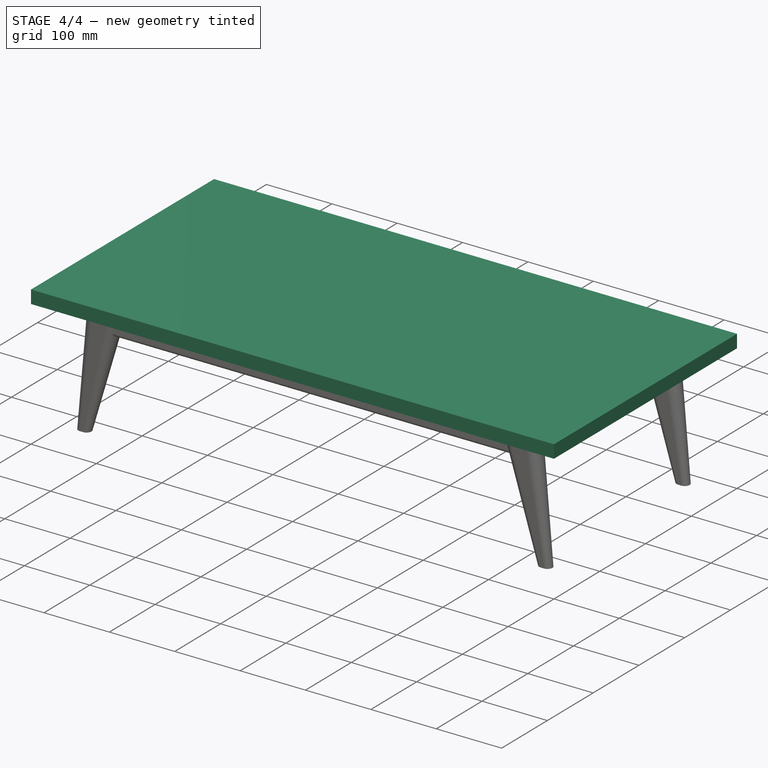
[diagram: stage 4 of 4 — iso view after this stage's code; geometry added in this stage tinted green]
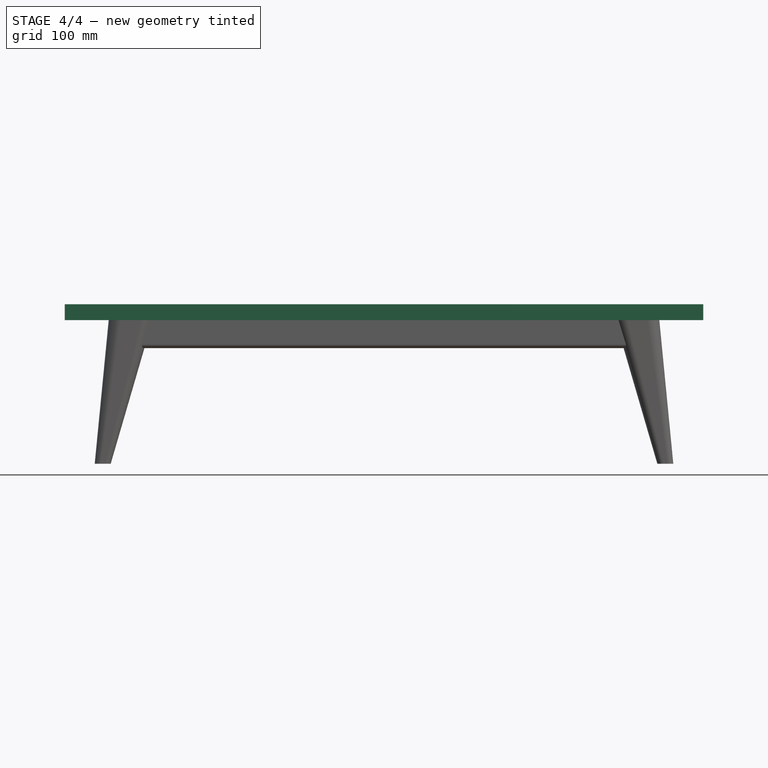
[diagram: stage 4 of 4 — front view after this stage's code; geometry added in this stage tinted green]
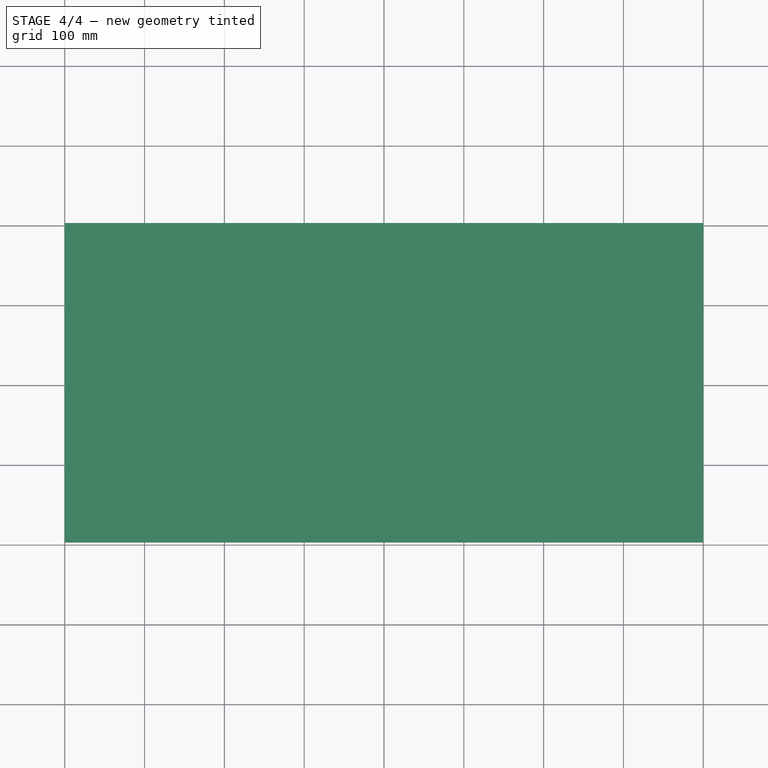
[diagram: stage 4 of 4 — top view after this stage's code; geometry added in this stage tinted green]
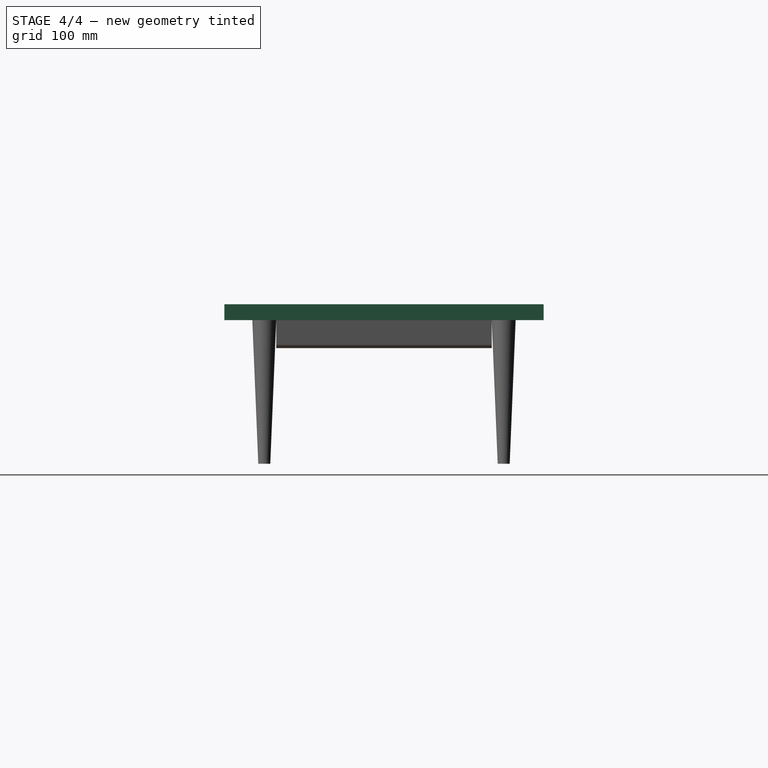
[diagram: stage 4 of 4 — right view after this stage's code; geometry added in this stage tinted green]
FEATURE [App::DocumentObjectGroup] Group292  label="02-Elements_to_move_rotate"
  Group = -> [Sketch022]
FEATURE [App::DocumentObjectGroup] Group249  label="04-Spreadsheet_"
  Group = -> [Spreadsheet003]
FEATURE [App::TextDocument] Text_document001  label="Guidelines_new_objects_properties_"
  Text = <blob: 3302 chars omitted>
FEATURE [App::TextDocument] Text_document  label="Guidelines_rectangular_center_table_file_configurations_"
  Text = Some guidelines for using this component file.\n-----------------------------------------\n\n1. Basic workflow for component configuration (see video)\n\nThrough the properties window ("01-Prop_Rectangular_center_table_configurations_#_") it is possible to configure the basic dimensions of the component (length, width and height) and its parts such as panel and feet, as well their respective materials.\n\n2. Component insertion\n\nOpen the "02-Elements_to_move_rotate" folder and select the "Table_base_move_rotate_" Sketch.\n\nDrag the selection to the final insertion position of the component in the project, rotating it later if necessary. Make new configurations of the component if necessary.\n\n3. To generate the corresponding 2D projections, use the pre-established sections by adding the necessary objects to them and click on "Shape 2D view" (Draft_Shape2DView).\n\n4. Cautions:\n\n4.1. Set dimensions and quantities close to those used in reality, otherwise it could destroy the structure of a piece or the assembly itself.\n\n4.2. Where applicable, one of the main considerations when configuring arrays is to avoid accidentally assign large values ​​(hundreds or thousands) for the quantities of parts of the part, for example.\n\n4.4. When searching for a profile or material, use the folder according to the type one is looking for, this will make the task much easier. Materials, for example, are organized into different groups (see video).
FEATURE [App::DocumentObjectGroup] Group250  label="05-Guidelines_"
  Group = -> [Text_document001,Text_document]
FEATURE [App::MaterialObjectPython] Material047  label="glass generic"  # material (typed FeaturePython)
  Material = Color=(0.3333333333333333, 0.6666666666666666, 1.0, 1.0); DiffuseColor=(0.3333333333333333, 0.6666666666666666, 1.0, 1.0); Name=glass generic; SectionColor=(0.8, 0.8, 0.8, 1.0); Transparency=70; ViewColor=(0.3333333333333333, 0.6666666666666666, 1.0, 1.0)
  Transparency = 70
FEATURE [App::DocumentObjectGroup] Group311  label="Glass_"
  Group = -> [Material047]
FEATURE [App::MaterialObjectPython] Material048  label="aluminum generic"  # material (typed FeaturePython)
  Material = AuthorAndLicense=Uwe Stöhr; CardName=Aluminum-Generic; Color=(0.8, 0.8, 0.8, 1.0); Density=2700 kg/m^3; DiffuseColor=(0.8, 0.8, 0.8, 1.0); ElectricalConductivity=370370.4 S/m; Father=Metal; KindOfMaterial=Aluminium; Name=aluminum generic; PoissonRatio=0.35; RelativePermeability=1.0; SectionColor=(0.8, 0.8, 0.8, 1.0); ShearModulus=25.0 GPa; SpecificHeat=897.0 J/kg/K; ThermalConductivity=237.0 W/m/K; ThermalExpansionCoefficient=23.1 µm/m/K; Transparency=0; UltimateTensileStrength=310 MPa; ViewColor=(0.8, 0.8, 0.8, 1.0); YoungsModulus=70000 MPa
  Transparency = 0
FEATURE [App::MaterialObjectPython] Material049  label="stainless steel generic"  # material (typed FeaturePython)
  Material = AuthorAndLicense=Uwe Stöhr; CardName=Iron-Generic; Color=(0.8, 0.8, 0.8, 1.0); Density=7874 kg/m^3; DiffuseColor=(0.3607843220233917, 0.3607843220233917, 0.40784314274787903); ElectricalConductivity=10.3 MS/m; Father=Metal; KindOfMaterial=Iron; Name=stainless steel generic; PoissonRatio=0.29; RelativePermeability=5000.0; SectionColor=(0.8, 0.8, 0.8, 1.0); ShearModulus=82.0 GPa; SpecificHeat=460.5 J/kg/K; ThermalConductivity=80.4 W/m/K; ThermalExpansionCoefficient=11.8 µm/m/K; Transparency=0; UltimateTensileStrength=497 MPa; ViewColor=(0.8, 0.8, 0.8, 1.0); YieldStrength=428 MPa; YoungsModulus=211 GPa
  Transparency = 0
FEATURE [App::DocumentObjectGroup] Group310  label="Metal_"
  Group = -> [Material049,Material048]
FEATURE [App::MaterialObjectPython] Material053  label="wood generic"  # material (typed FeaturePython)
  Description = A standard construction wood
  Material = AuthorAndLicense=(c) 2015 Bernd Hahnebach (CC-BY 3.0); CardName=Wood-Generic; Color=(0.8, 0.8, 0.8, 1.0); Density=700 kg/m^3; Description=A standard construction wood; DiffuseColor=(0.45490196347236633, 0.22745098173618317, 0.0); Father=Aggregate; Name=wood generic; PoissonRatio=0.05; ProductURL=https://en.wikipedia.org/wiki/Wood; SectionColor=(0.8, 0.8, 0.8, 1.0); Transparency=0; ViewColor=(0.8, 0.8, 0.8, 1.0); YoungsModulus=12000 MPa
  ProductURL = https://en.wikipedia.org/wiki/Wood
  Transparency = 0
FEATURE [Part::Extrusion] Extrude039021  label="01-Main_panel_"
  Area = 320000
  Base = -> Sketch255
  Dir = (0,0,1)
  DirMode = 2
  FaceMakerClass = Part::FaceMakerBullseye
  FaceMakerMode = 3
  LengthFwd = 20
  LengthRev = 0
  Material = -> Material053
  Placement = pos=(0,0,200) rot=(0,0,1;0rad)
  Reversed = true
  Solid = true
  Symmetric = false
  expr: .Placement.Base.z = VarSet.Base_dimensions_B_Height
  expr: Area = .Shape.Face5.Area
  expr: LengthFwd = VarSet.Panel_B_Thickness
  expr: Material = VarSet.Panel_C_Material
  expr: Visibility = VarSet.Visualization_A_Visualization
FEATURE [Part::Compound] Compound  label="02-Foot_frame_"
  Links = -> [Extrude084143354,Extrude084143355]
  Material = -> Material053
  expr: Material = VarSet.Foot_frames_C_Material
  expr: Visibility = VarSet.Visualization_A_Visualization
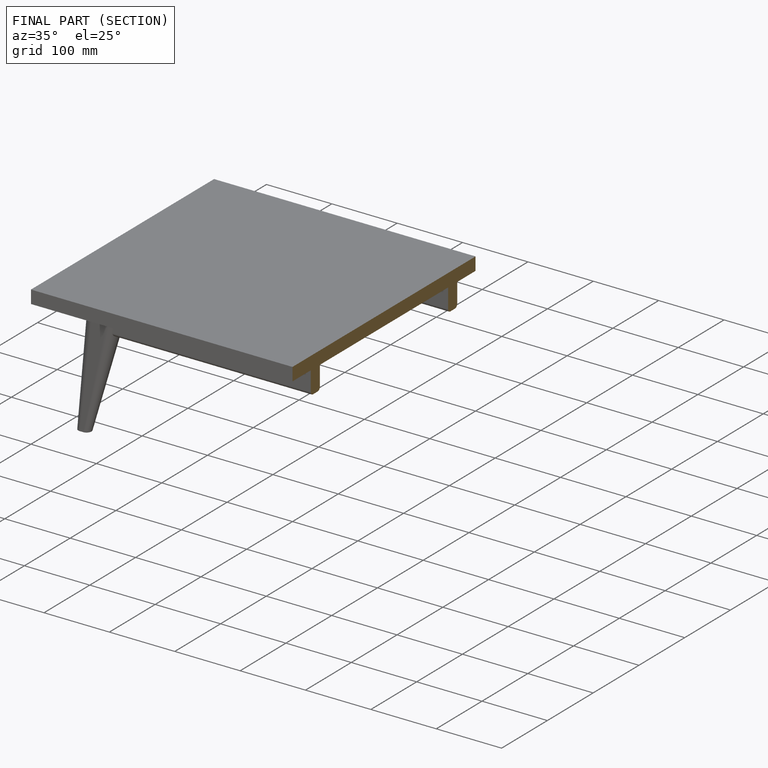
[diagram: finished part — half-section view (interior)]
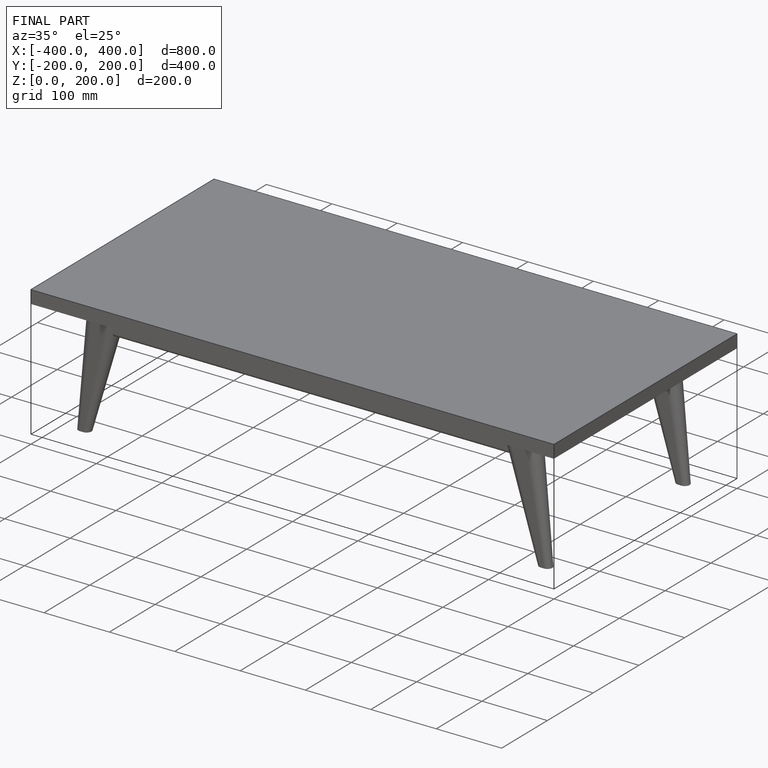
[diagram: finished part — iso view with bounding-box wireframe]
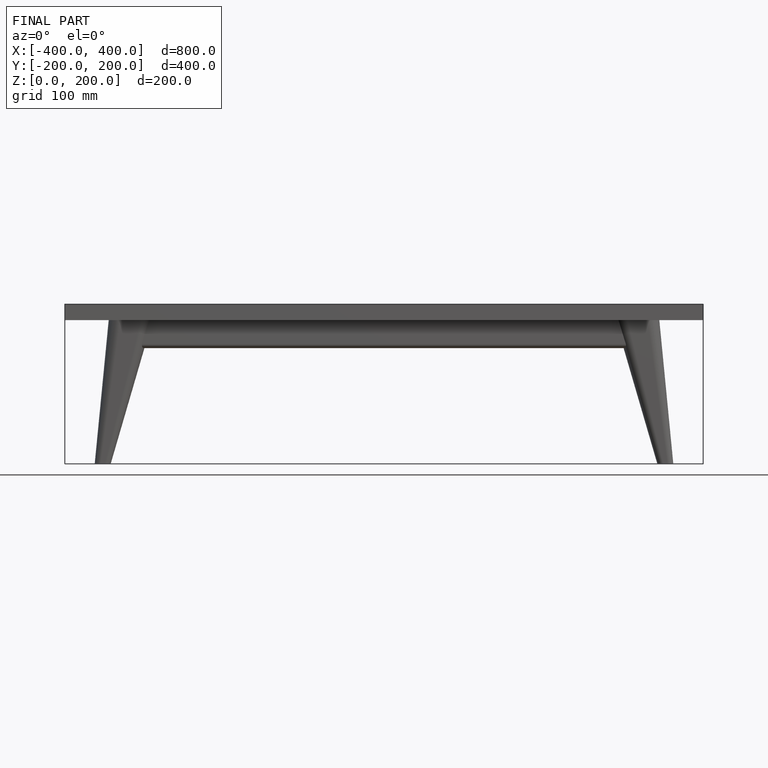
[diagram: finished part — front view with bounding-box wireframe]
